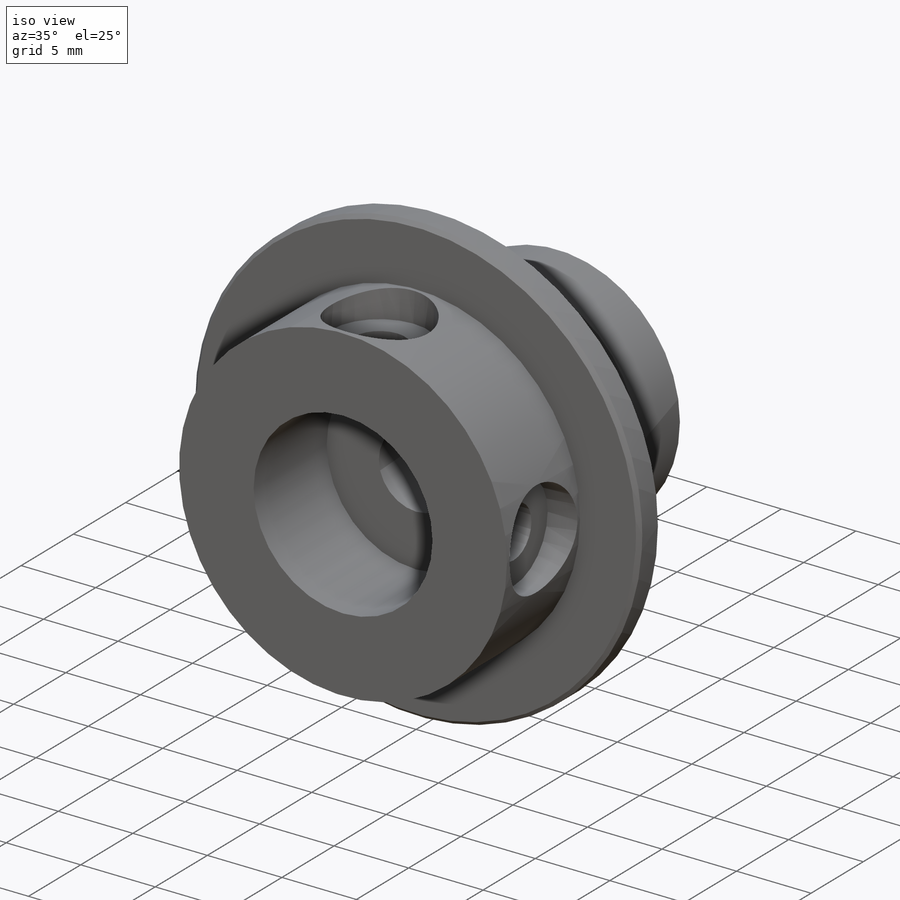
[diagram: iso view]
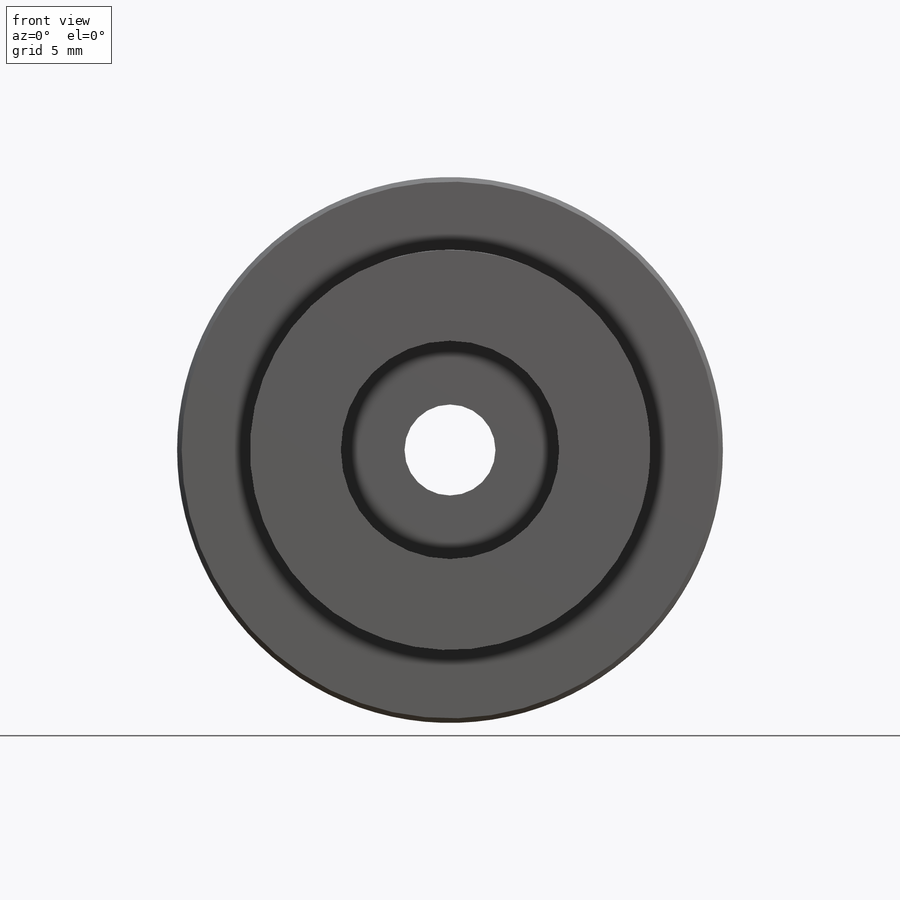
[diagram: front view]
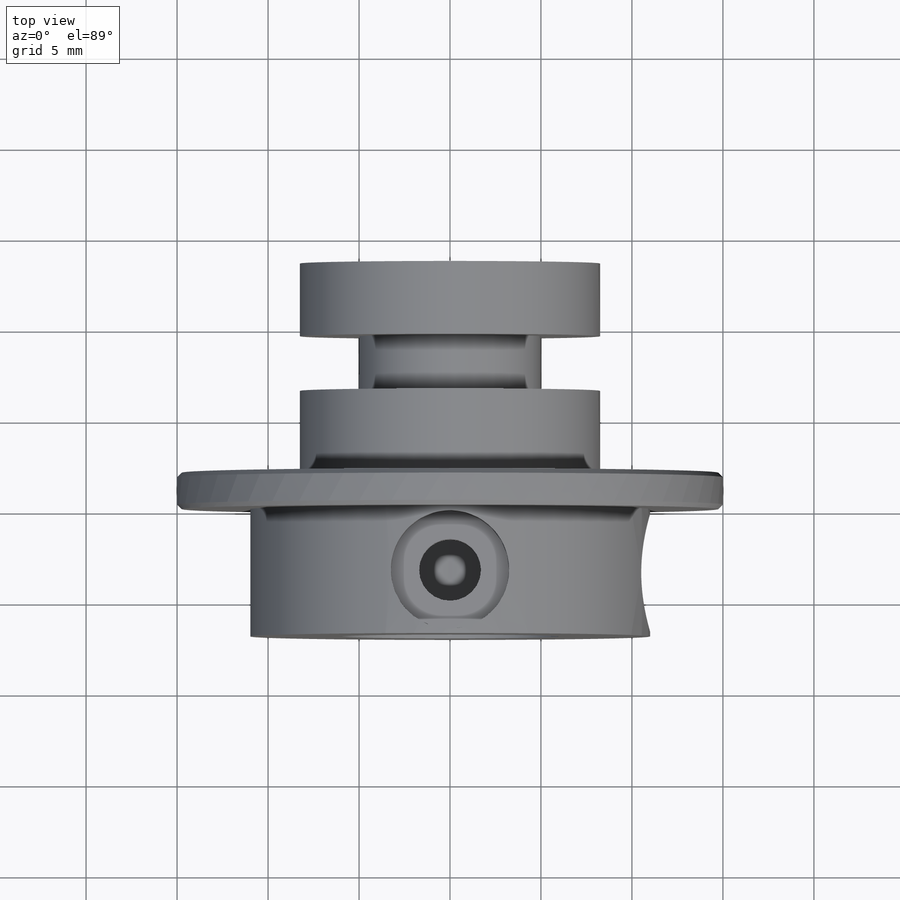
[diagram: top view]
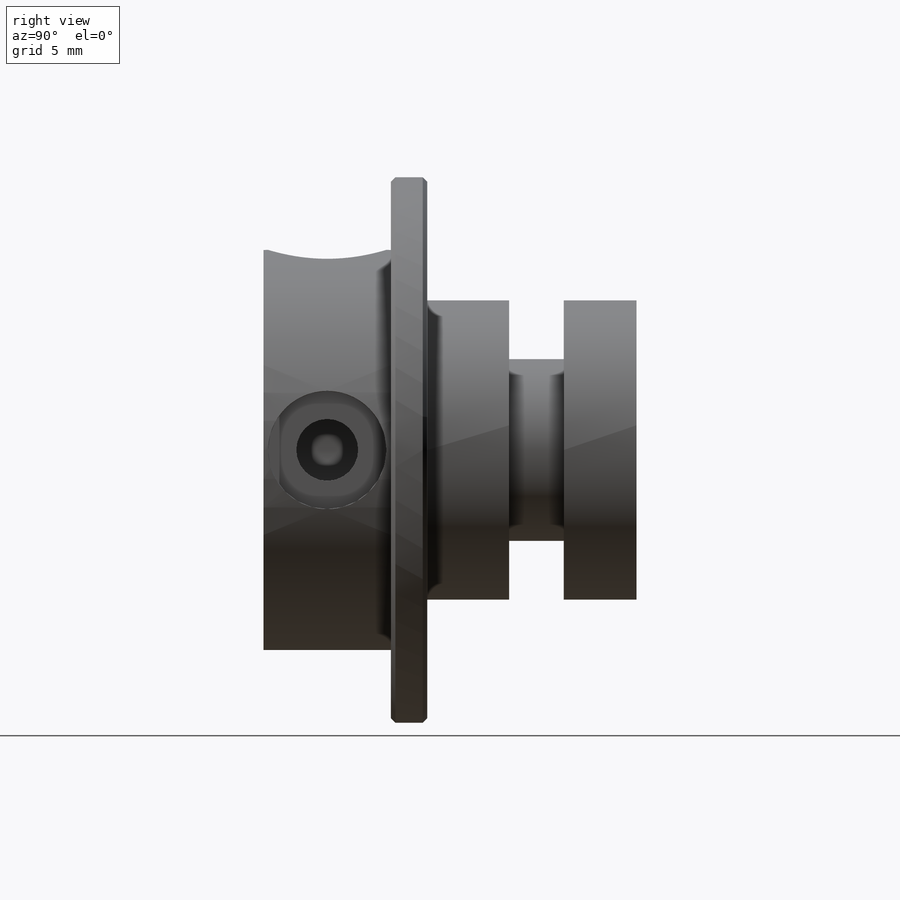
[diagram: right view]
SOLIDWORKS PART (.sldprt)
format: sldprt  version: not decoded by parser v0  size: 517,632 bytes
history: native  units: mm
features: sketch x5, revolve x2, material x1, chamfer x1, cut_extrude x1, hole x1 (+15 scaffold rows collapsed)
feature tree (26):
  scaffold x15  (default folders/planes/origin — collapsed)
  material  "AISI 1020"
  sketch  "Sketch1"  dims[c1.D1=8.09mm c1.D2=1.0mm c1.D3=8.25mm c1.D4=4.5mm c1.D5=3.0mm c1.D6=3.58mm c2.D1=13.3mm c2.D5=5.0mm c3.D1=15.0mm c3.D6=1.0mm c3.D2=2.0mm c4.D6=6.55mm c5.D6=80.0deg c5.D5=6.0mm c5.D7=7.0mm c5.D8=5.0mm]
  revolve  "Revolve1"  Angle=360deg
  chamfer  "Chamfer1"  Distance=0.25mm Angle=45deg
  sketch  "Sketch2"  dims[D1=5.0mm]
  cut_extrude  "Cut-Extrude1"  Depth=10mm
  hole  "CBORE for M3 Cheese Head Screw1"  Diameter=3.4mm Depth=10mm
  sketch  "3DSketch1"  dims[D1=3.5mm D2=3.5mm]
  sketch  "Sketch4"  dims[hole-wizard template sketch: 28 standard entries collapsed; hole parameters kept: c8.Hole Dia.=3.4mm c8.Hole Depth=10.0mm c8.C'Bore Dia.=6.5mm c8.C'Bore Depth=2.0mm c8.D5=~14.816244mm c8.Drill Angle=118.0deg]
  sketch  "Sketch5"  dims[D1=5.0mm D2=10.0mm D3=16.5mm D4=3.0mm D5=4.0mm]
  revolve  "Revolve2"  Angle=360deg
decode coverage: 10 of 10 modeling features carry decoded parameters
note: ~ marks probable driven/reference dimensions
note: suppression state not decoded; provenance and decode notes live in map.json
